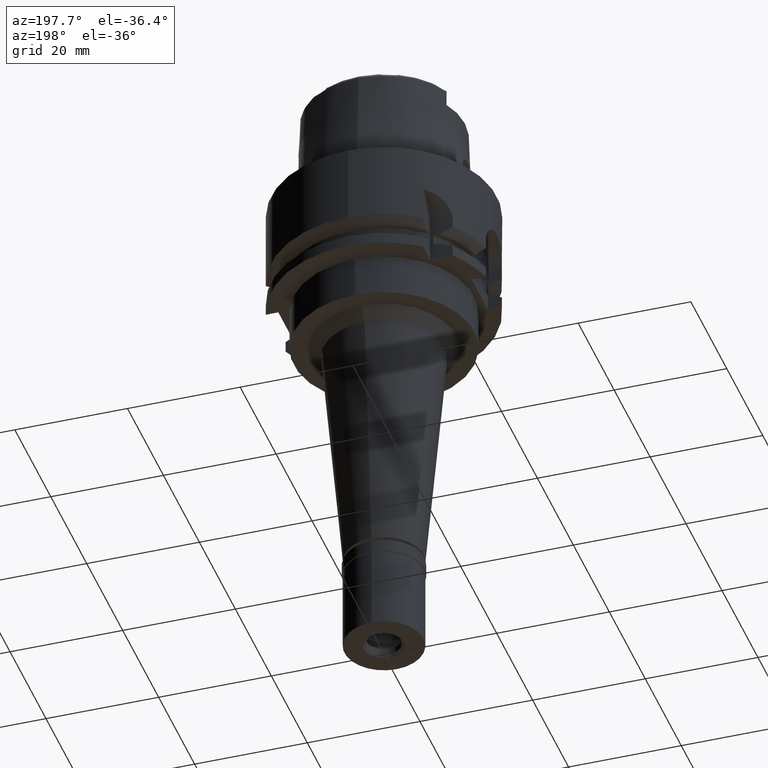
[diagram: clean part render]
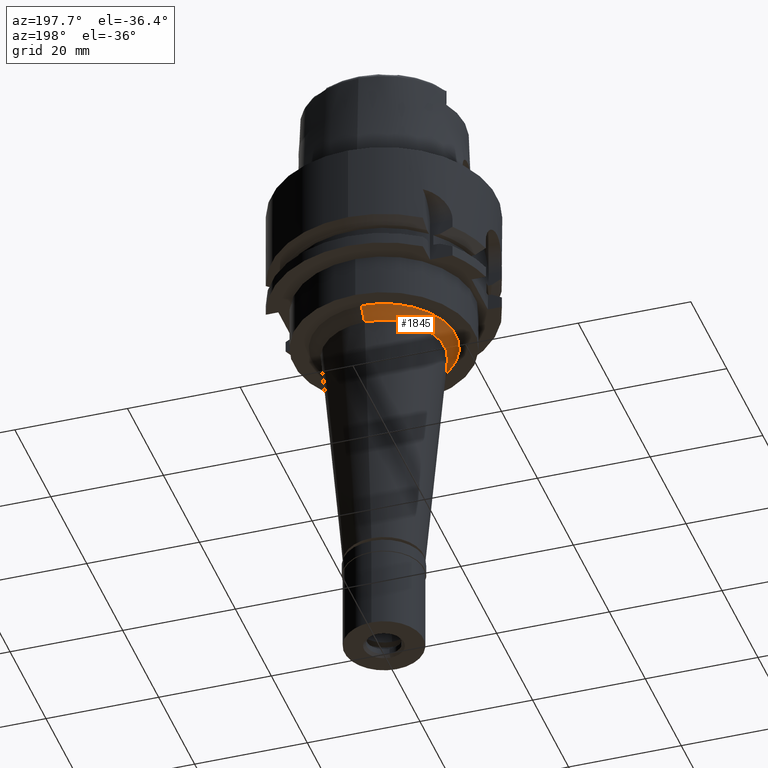
[diagram: same view with one face highlighted and labeled with its STEP entity id]
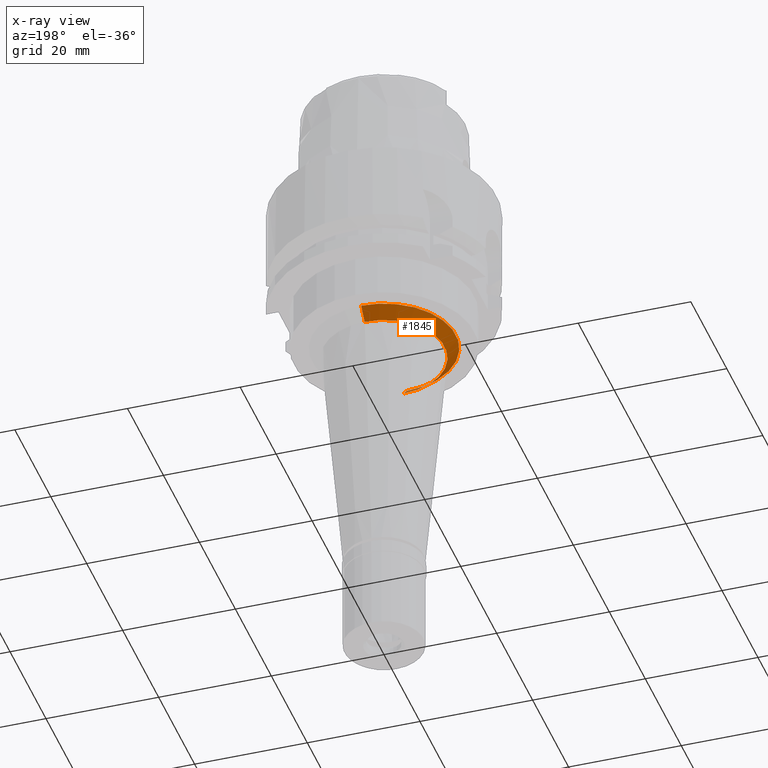
[diagram: x-ray of the same camera — body ghosted, the highlighted face saturated]
A machine part, auxiliary view. The second image highlights one B-rep face of the part: STEP entity #1845.
The next image is the same camera in x-ray: the body ghosted, the highlighted face saturated — about 2% of this face is hidden behind the body in this view.
In plain terms, the highlighted conical surface has half-angle 45 deg.
Its self-contained STEP definition (entity closure, byte-faithful):
#29 = VERTEX_POINT ( 'NONE', #4790 ) ;
#183 = DIRECTION ( 'NONE',  ( 0.0000000000000000000, -1.000000000000000000, 0.0000000000000000000 ) ) ;
#540 = ORIENTED_EDGE ( 'NONE', *, *, #2365, .F. ) ;
#572 = CARTESIAN_POINT ( 'NONE',  ( 0.0000000000000000000, 0.0000000000000000000, -27.50000000000000000 ) ) ;
#574 = AXIS2_PLACEMENT_3D ( 'NONE', #3980, #2757, #897 ) ;
#634 = DIRECTION ( 'NONE',  ( 0.0000000000000000000, 0.0000000000000000000, -1.000000000000000000 ) ) ;
#694 = CARTESIAN_POINT ( 'NONE',  ( 0.0000000000000000000, -12.74451479890999828, -27.50000000000000000 ) ) ;
#889 = ORIENTED_EDGE ( 'NONE', *, *, #3602, .T. ) ;
#897 = DIRECTION ( 'NONE',  ( 0.0000000000000000000, 1.000000000000000000, 0.0000000000000000000 ) ) ;
#944 = CIRCLE ( 'NONE', #3678, 10.74451479890999828 ) ;
#1039 = DIRECTION ( 'NONE',  ( 0.0000000000000000000, -0.7071067811865969777, -0.7071067811864980568 ) ) ;
#1424 = EDGE_CURVE ( 'NONE', #29, #1951, #944, .T. ) ;
#1446 = CARTESIAN_POINT ( 'NONE',  ( 0.0000000000000000000, 12.74451479890999828, -27.50000000000000000 ) ) ;
#1845 = ADVANCED_FACE ( 'NONE', ( #2113 ), #4940, .T. ) ;
#1854 = DIRECTION ( 'NONE',  ( 0.0000000000000000000, 0.0000000000000000000, -1.000000000000000000 ) ) ;
#1951 = VERTEX_POINT ( 'NONE', #4592 ) ;
#2113 = FACE_OUTER_BOUND ( 'NONE', #2792, .T. ) ;
#2248 = LINE ( 'NONE', #3153, #3154 ) ;
#2365 = EDGE_CURVE ( 'NONE', #5297, #29, #3988, .T. ) ;
#2541 = ORIENTED_EDGE ( 'NONE', *, *, #4684, .T. ) ;
#2570 = ORIENTED_EDGE ( 'NONE', *, *, #1424, .F. ) ;
#2757 = DIRECTION ( 'NONE',  ( 0.0000000000000000000, 0.0000000000000000000, 1.000000000000000000 ) ) ;
#2792 = EDGE_LOOP ( 'NONE', ( #2570, #540, #2541, #889 ) ) ;
#3153 = CARTESIAN_POINT ( 'NONE',  ( 0.0000000000000000000, 12.74451479890999828, -27.50000000000000000 ) ) ;
#3154 = VECTOR ( 'NONE', #1039, 1000.000000000000000 ) ;
#3602 = EDGE_CURVE ( 'NONE', #3708, #1951, #2248, .T. ) ;
#3678 = AXIS2_PLACEMENT_3D ( 'NONE', #4662, #1854, #183 ) ;
#3708 = VERTEX_POINT ( 'NONE', #1446 ) ;
#3980 = CARTESIAN_POINT ( 'NONE',  ( 0.0000000000000000000, 0.0000000000000000000, -28.50000000000000000 ) ) ;
#3988 = LINE ( 'NONE', #5177, #4594 ) ;
#4192 = CIRCLE ( 'NONE', #5052, 12.74451479890999828 ) ;
#4592 = CARTESIAN_POINT ( 'NONE',  ( 0.0000000000000000000, 10.74451479890999828, -29.50000000000000000 ) ) ;
#4594 = VECTOR ( 'NONE', #4802, 1000.000000000000000 ) ;
#4662 = CARTESIAN_POINT ( 'NONE',  ( 0.0000000000000000000, 0.0000000000000000000, -29.50000000000000000 ) ) ;
#4684 = EDGE_CURVE ( 'NONE', #5297, #3708, #4192, .T. ) ;
#4731 = DIRECTION ( 'NONE',  ( 0.0000000000000000000, -1.000000000000000000, 0.0000000000000000000 ) ) ;
#4790 = CARTESIAN_POINT ( 'NONE',  ( 0.0000000000000000000, -10.74451479890999828, -29.50000000000000000 ) ) ;
#4802 = DIRECTION ( 'NONE',  ( 0.0000000000000000000, 0.7071067811865969777, -0.7071067811864980568 ) ) ;
#4940 = CONICAL_SURFACE ( 'NONE', #574, 11.74451479891000005, 0.7853981633972997312 ) ;
#5052 = AXIS2_PLACEMENT_3D ( 'NONE', #572, #634, #4731 ) ;
#5177 = CARTESIAN_POINT ( 'NONE',  ( 0.0000000000000000000, -12.74451479890999828, -27.50000000000000000 ) ) ;
#5297 = VERTEX_POINT ( 'NONE', #694 ) ;